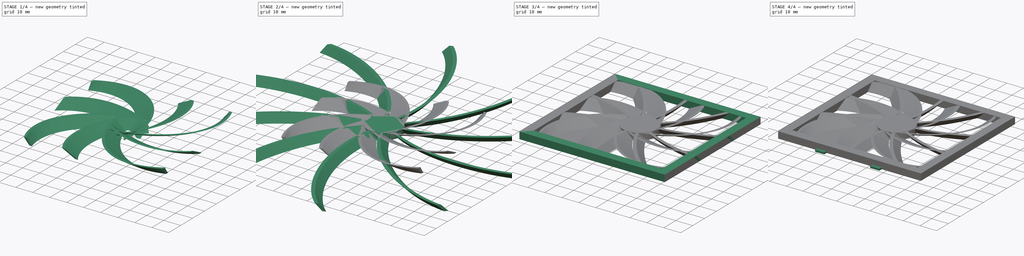
[diagram: build sequence overview — one tinted view per stage of 4, left to right]
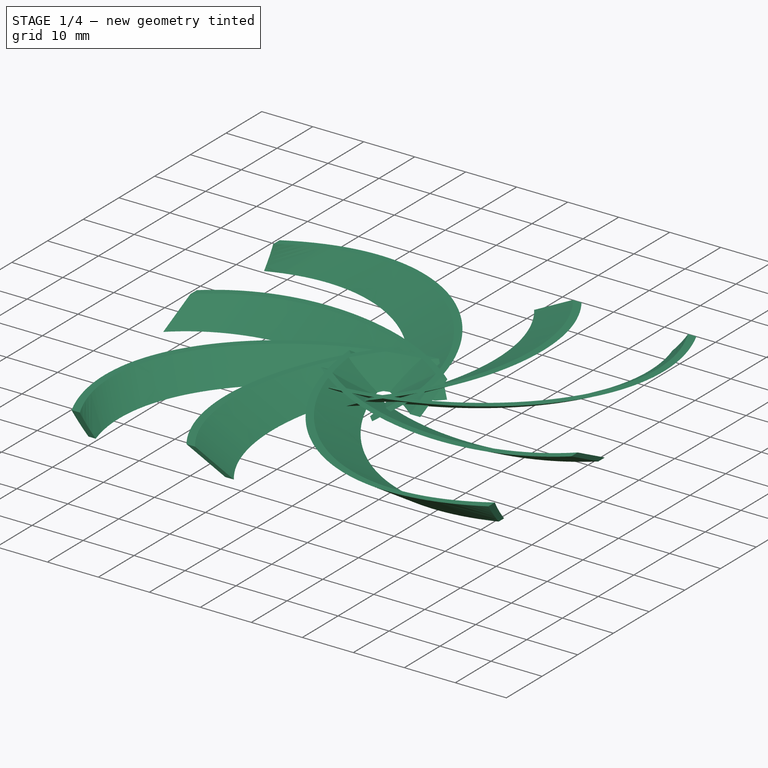
[diagram: stage 1 of 4 — iso view after this stage's code; geometry added in this stage tinted green]
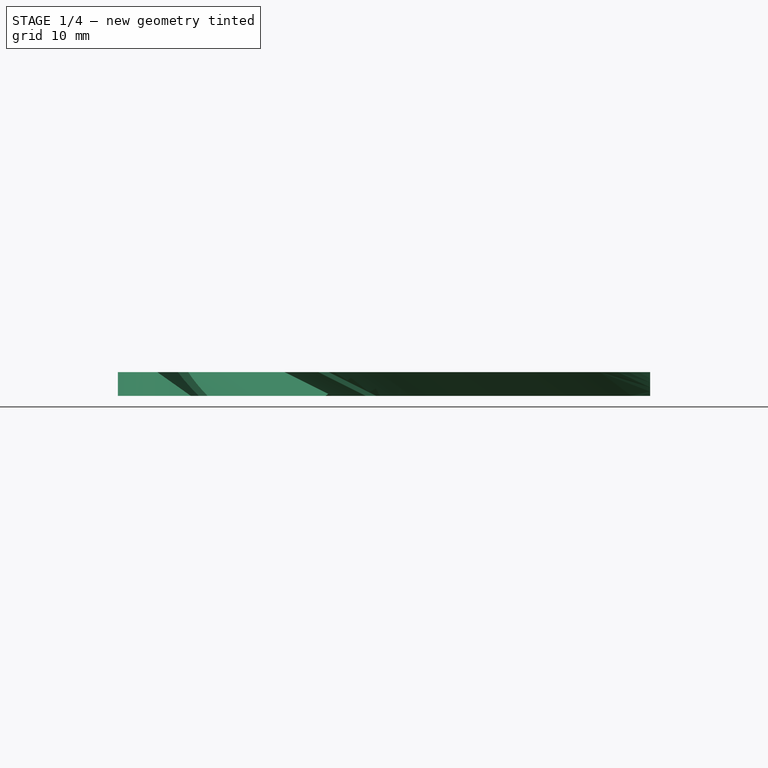
[diagram: stage 1 of 4 — front view after this stage's code; geometry added in this stage tinted green]
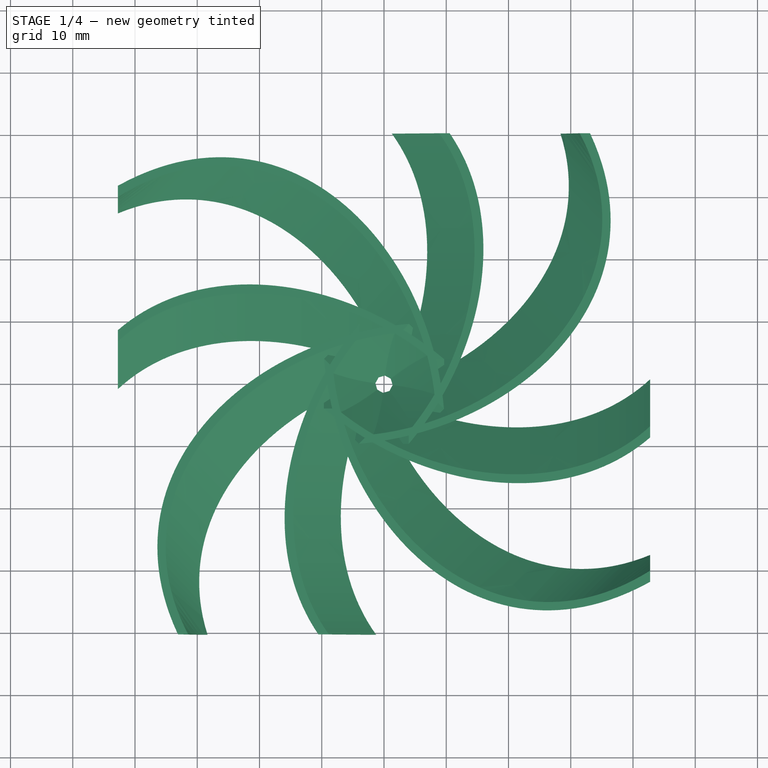
[diagram: stage 1 of 4 — top view after this stage's code; geometry added in this stage tinted green]
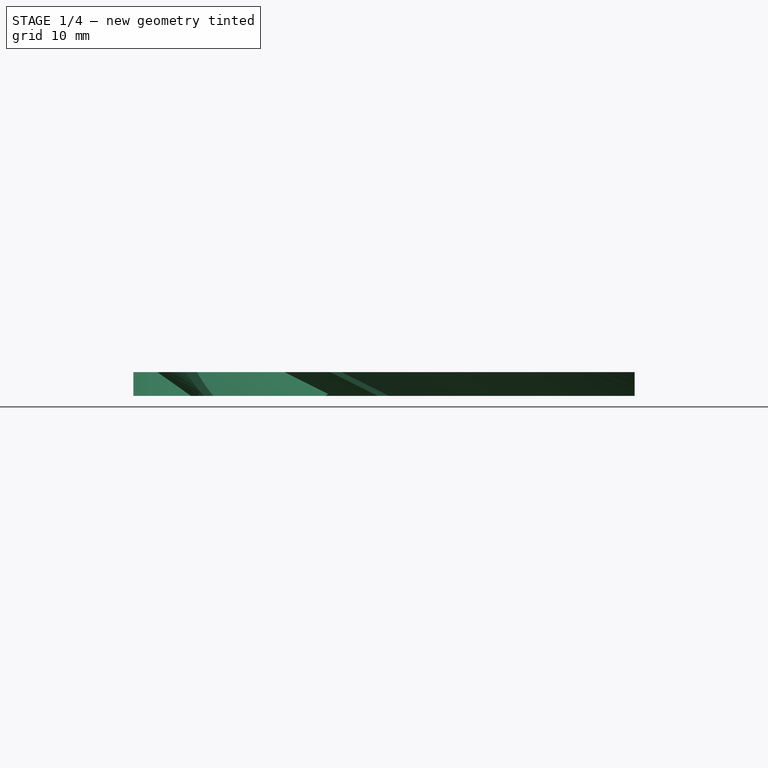
[diagram: stage 1 of 4 — right view after this stage's code; geometry added in this stage tinted green]
FCSTD DOCUMENT  (FreeCAD 0.17R13522 (Git))
Label: FengShanZhao-jwei-1.0
License: All rights reserved
LicenseURL: http://en.wikipedia.org/wiki/All_rights_reserved
objects: Sketcher::SketchObject×19, PartDesign::Body×4, PartDesign::Pad×4, Part::Extrusion×2, Part::FeaturePython×2, Part::Cylinder×2, PartDesign::Pocket×2, PartDesign::ShapeBinder×2, Part::Common×2, Part::Spiral×1
note: 46 computed .brp shape members not serialized (recipe doc carries the construction recipe); baked Part::Feature solids carry a one-line shape summary decoded from their .brp

FEATURE [Sketcher::SketchObject] Sketch008
  MapMode = 5
  Support = -> [XY_Plane003]
  sketch-geometry (4):
    g0: LineSegment StartX=-42.75 StartY=40.25 StartZ=0 EndX=42.75 EndY=40.25 EndZ=0
    g1: LineSegment StartX=42.75 StartY=40.25 StartZ=0 EndX=42.75 EndY=-40.25 EndZ=0
    g2: LineSegment StartX=42.75 StartY=-40.25 StartZ=0 EndX=-42.75 EndY=-40.25 EndZ=0
    g3: LineSegment StartX=-42.75 StartY=-40.25 StartZ=0 EndX=-42.75 EndY=40.25 EndZ=0
  constraints (12):
    c: Coincident(g0,g1)
    c: Coincident(g1,g2)
    c: Coincident(g2,g3)
    c: Coincident(g3,g0)
    c: Horizontal(g0)
    c: Horizontal(g2)
    c: Vertical(g1)
    c: Vertical(g3)
    c: DistanceX(g0,g0) = 85.5
    c: DistanceY(g1,g1) = 80.5
    c: DistanceX(g-2,g0) = 42.75
    c: DistanceY(g-1,g0) = 40.25
FEATURE [PartDesign::Pad] Pad001
  Length = 4
  Length2 = 100
  Profile = -> Sketch008
  Type = 0
FEATURE [Sketcher::SketchObject] Sketch018
  sketch-geometry (16):
    g0-g3: Circle [constr] x4 (B-spline internal-alignment scaffolding for g4; pole/knot coordinates omitted)
    g4: BSplineCurve PolesCount=4 KnotsCount=2 Degree=3 IsPeriodic=0
    g5: GeomPoint [constr] X=-54.5788 Y=-26.452 Z=0
    g6: GeomPoint [constr] X=9.65343 Y=-3.63273 Z=0
    g7-g10: Circle [constr] x4 (B-spline internal-alignment scaffolding for g11; pole/knot coordinates omitted)
    g11: BSplineCurve PolesCount=4 KnotsCount=2 Degree=3 IsPeriodic=0
    g12: GeomPoint [constr] X=-52.5788 Y=-26.452 Z=0
    g13: GeomPoint [constr] X=7.65343 Y=-3.63273 Z=0
    g14: LineSegment StartX=-54.5788 StartY=-26.452 StartZ=0 EndX=-52.5788 EndY=-26.452 EndZ=0
    g15: LineSegment StartX=7.65343 StartY=-3.63273 StartZ=0 EndX=9.65343 EndY=-3.63273 EndZ=0
  constraints (27):
    c: Radius(g0) = 4
    c: Equal(g0,g1)
    c: Equal(g0,g2)
    c: Equal(g0,g3)
    c: InternalAlignment(g0-g3 -> g4) x4
    c: InternalAlignment(g5,g4)
    c: InternalAlignment(g6,g4)
    c: Radius(g7) = 2
    c: Equal(g7,g8)
    c: Equal(g7,g9)
    c: Equal(g7,g10)
    c: InternalAlignment(g7-g10 -> g11) x4
    c: InternalAlignment(g12,g11)
    c: InternalAlignment(g13,g11)
    c: Coincident(g14,g0)
    c: Coincident(g14,g7)
    c: Horizontal(g14)
    c: Coincident(g15,g3)
    c: Horizontal(g15)
    c: Coincident(g10,g15)
    c: DistanceX(g14,g14) = 2
    c: DistanceX(g15,g15) = 2
    c: Vertical(g8,g1)
    c: Vertical(g9,g2)
    c: Distance(g1,g8) = 2
    c: Distance(g9,g2) = 2
    c: Horizontal(g1,g9)
FEATURE [Part::Extrusion] Extrude001
  Base = -> Sketch018
  Dir = (0,20,10)
  DirMode = 0
  FaceMakerClass = Part::FaceMakerBullseye
  LengthFwd = 8.5
  LengthRev = 0
  Solid = true
  Symmetric = false
FEATURE [Part::FeaturePython] Array001  # Draft array (typed FeaturePython)
  Angle = 360
  ArrayType = 1
  Axis = (0,0,1)
  Base = -> Extrude001
  Center = (0,0,0)
  Fuse = false
  IntervalAxis = (0,0,0)
  IntervalX = (1,0,0)
  IntervalY = (0,1,0)
  IntervalZ = (0,0,0)
  NumberPolar = 8
  NumberX = 2
  NumberY = 2
  NumberZ = 1
FEATURE [Part::Common] Common001
  Base = -> Body003
  Tool = -> Array001
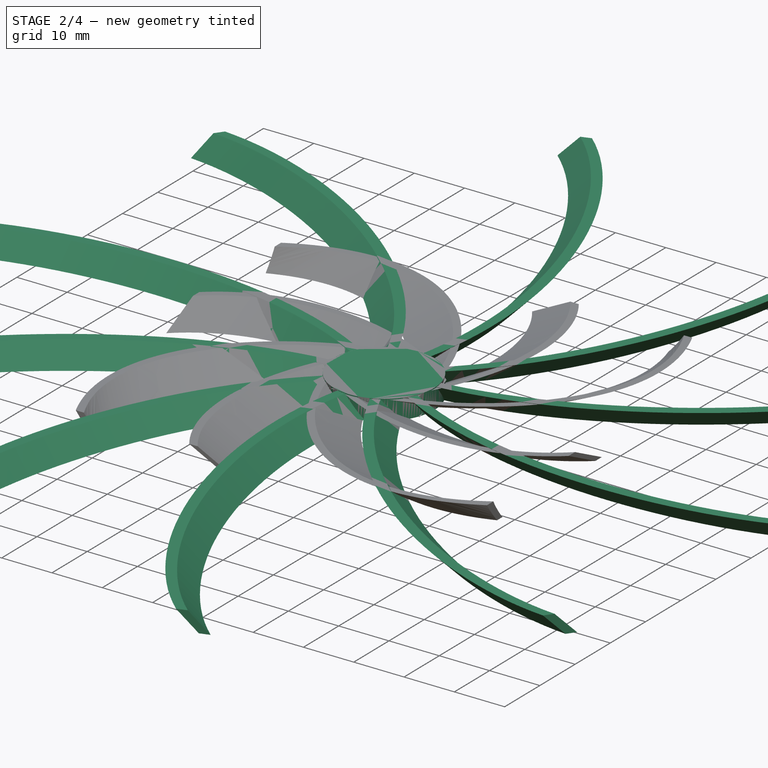
[diagram: stage 2 of 4 — iso view after this stage's code; geometry added in this stage tinted green]
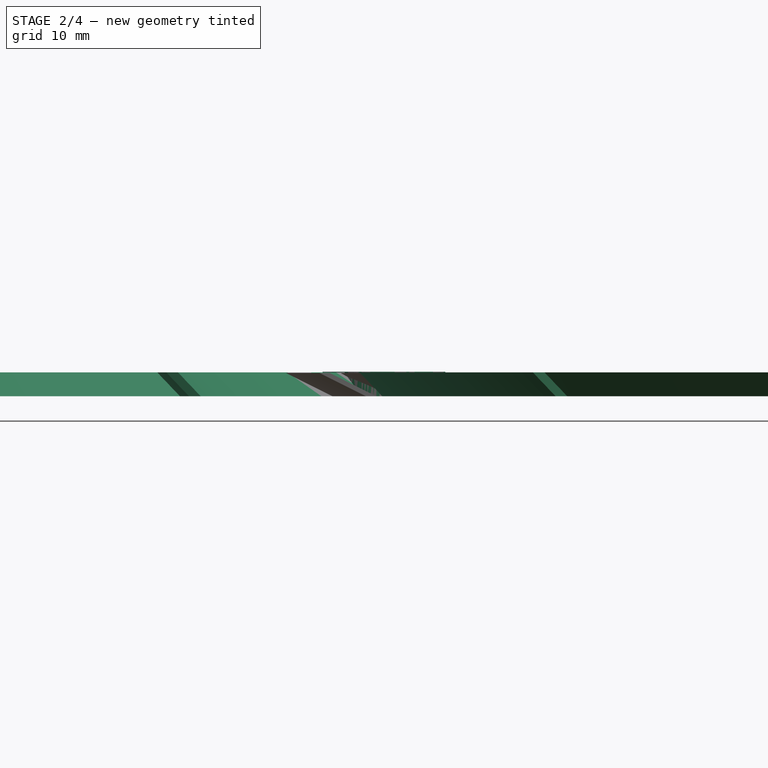
[diagram: stage 2 of 4 — front view after this stage's code; geometry added in this stage tinted green]
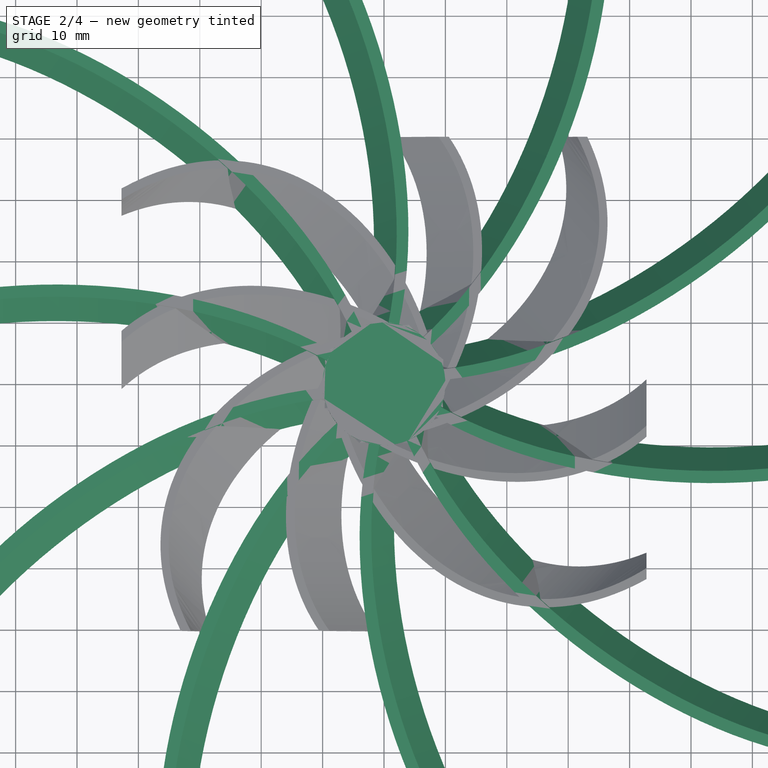
[diagram: stage 2 of 4 — top view after this stage's code; geometry added in this stage tinted green]
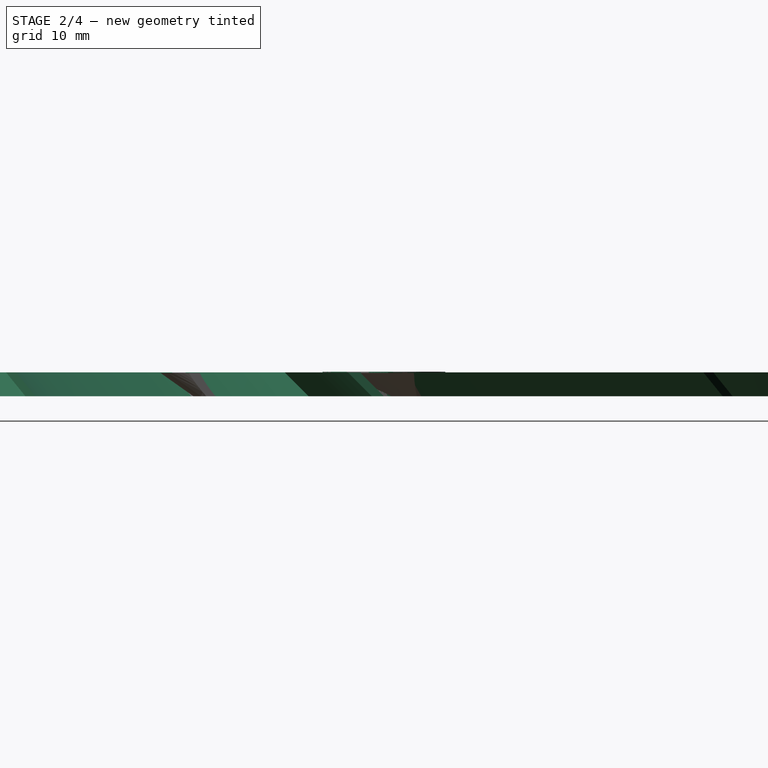
[diagram: stage 2 of 4 — right view after this stage's code; geometry added in this stage tinted green]
FEATURE [Part::Spiral] Spiral  label="螺旋"
  AttacherType = Attacher::AttachEngine3D
  Growth = 100
  Radius = 2
  Rotations = 0.15
FEATURE [Sketcher::SketchObject] Sketch
  MapMode = 5
  Placement = pos=(0,0,0) rot=(0.57735,0.57735,0.57735;2.0944rad)
  Support = -> [YZ_Plane]
  sketch-geometry (4):
    g0: LineSegment StartX=-3.28878 StartY=1.5 StartZ=0 EndX=-2.78878 EndY=1.5 EndZ=0
    g1: LineSegment StartX=-2.78878 StartY=1.5 StartZ=0 EndX=-2.78878 EndY=0 EndZ=0
    g2: LineSegment StartX=-2.78878 StartY=0 StartZ=0 EndX=-3.28878 EndY=0 EndZ=0
    g3: LineSegment StartX=-3.28878 StartY=0 StartZ=0 EndX=-3.28878 EndY=1.5 EndZ=0
  constraints (11):
    c: Coincident(g0,g1)
    c: Coincident(g1,g2)
    c: Coincident(g2,g3)
    c: Coincident(g3,g0)
    c: Horizontal(g0)
    c: Horizontal(g2)
    c: Vertical(g1)
    c: Vertical(g3)
    c: PointOnObject(g2,g-1)
    c: DistanceX(g2,g2) = 0.5
    c: DistanceY(g3,g3) = 1.5
FEATURE [Sketcher::SketchObject] Sketch001
  sketch-geometry (16):
    g0-g3: Circle [constr] x4 (B-spline internal-alignment scaffolding for g4; pole/knot coordinates omitted)
    g4: BSplineCurve PolesCount=4 KnotsCount=2 Degree=3 IsPeriodic=0
    g5: GeomPoint [constr] X=-96.6016 Y=0 Z=0
    g6: GeomPoint [constr] X=3.39841 Y=-9.40483 Z=0
    g7-g10: Circle [constr] x4 (B-spline internal-alignment scaffolding for g11; pole/knot coordinates omitted)
    g11: BSplineCurve PolesCount=4 KnotsCount=2 Degree=3 IsPeriodic=0
    g12: GeomPoint [constr] X=-96.6016 Y=2 Z=0
    g13: GeomPoint [constr] X=3.39841 Y=-7.40483 Z=0
    g14: LineSegment StartX=-96.6016 StartY=2 StartZ=0 EndX=-96.6016 EndY=0 EndZ=0
    g15: LineSegment StartX=3.39841 StartY=-7.40483 StartZ=0 EndX=3.39841 EndY=-9.40483 EndZ=0
  constraints (32):
    c: Equal(g0,g1)
    c: Equal(g0,g2)
    c: InternalAlignment(g0-g3 -> g4) x4
    c: InternalAlignment(g5,g4)
    c: InternalAlignment(g6,g4)
    c: PointOnObject(g0,g-1)
    c: DistanceY(g-1,g1) = 15
    c: DistanceY(g-1,g2) = 15
    c: Radius(g7) = 6
    c: Equal(g7,g8)
    c: Equal(g7,g9)
    c: Equal(g7,g10)
    c: InternalAlignment(g7-g10 -> g11) x4
    c: InternalAlignment(g12,g11)
    c: InternalAlignment(g13,g11)
    c: Vertical(g7,g0)
    c: Distance(g7,g0) = 2
    c: Vertical(g8,g1)
    c: Vertical(g9,g2)
    c: Distance(g8,g1) = 2
    c: Distance(g9,g2) = 2
    c: Vertical(g14)
    c: Coincident(g14,g7)
    c: Coincident(g14,g0)
    c: Coincident(g10,g15)
    c: Coincident(g15,g3)
    c: Distance(g10,g3) = 2
    c: Distance(g1,g2) = 50
    c: Vertical(g15)
    c: DistanceX(g0,g3) = 100
    c: Distance(g-1,g3) = 10
    c: DistanceX(g9,g10) = 25
FEATURE [Sketcher::SketchObject] Sketch002
  ExternalGeometry = -> [Sketch001]
  Placement = pos=(50,0,0) rot=(0.57735,0.57735,0.57735;2.0944rad)
  sketch-geometry (15):
    g0-g3: Circle [constr] x4 (B-spline internal-alignment scaffolding for g4; pole/knot coordinates omitted)
    g4: BSplineCurve PolesCount=4 KnotsCount=2 Degree=3 IsPeriodic=0
    g5: GeomPoint [constr] X=0 Y=0 Z=0
    g6: GeomPoint [constr] X=-0.5 Y=-2 Z=0
    g7-g10: Circle [constr] x4 (B-spline internal-alignment scaffolding for g11; pole/knot coordinates omitted)
    g11: BSplineCurve PolesCount=4 KnotsCount=2 Degree=3 IsPeriodic=0
    g12: GeomPoint [constr] X=-7.40483 Y=0 Z=0
    g13: GeomPoint [constr] X=0.5 Y=-2 Z=0
    g14: LineSegment StartX=-0.5 StartY=-2 StartZ=0 EndX=0.5 EndY=-2 EndZ=0
  constraints (28):
    c: Radius(g0) = 0.2
    c: Equal(g0,g1)
    c: Equal(g0,g2)
    c: Equal(g0,g3)
    c: InternalAlignment(g0-g3 -> g4) x4
    c: InternalAlignment(g5,g4)
    c: InternalAlignment(g6,g4)
    c: Radius(g7) = 0.3
    c: Equal(g7,g8)
    c: Equal(g7,g9)
    c: Equal(g7,g10)
    c: InternalAlignment(g7-g10 -> g11) x4
    c: InternalAlignment(g12,g11)
    c: InternalAlignment(g13,g11)
    c: Coincident(g0,g-1)
    c: DistanceX(g-2,g2) = 0.001
    c: Coincident(g7,g-3)
    c: DistanceY(g3,g-1) = 2
    c: Horizontal(g10,g3)
    c: Horizontal(g1,g8)
    c: Horizontal(g2,g9)
    c: Distance(g8,g1) = 1
    c: Distance(g9,g2) = 1
    c: Distance(g10,g3) = 1
    c: Horizontal(g14)
    c: Coincident(g14,g3)
    c: Coincident(g14,g10)
    c: DistanceX(g-2,g3) = -0.5
FEATURE [Sketcher::SketchObject] Sketch003
  Placement = pos=(0,-0.5,-2) rot=(0,0,1;0rad)
  sketch-geometry (16):
    g0-g3: Circle [constr] x4 (B-spline internal-alignment scaffolding for g4; pole/knot coordinates omitted)
    g4: BSplineCurve PolesCount=4 KnotsCount=2 Degree=3 IsPeriodic=0
    g5: GeomPoint [constr] X=-50 Y=0 Z=0
    g6: GeomPoint [constr] X=50 Y=0 Z=0
    g7-g10: Circle [constr] x4 (B-spline internal-alignment scaffolding for g11; pole/knot coordinates omitted)
    g11: BSplineCurve PolesCount=4 KnotsCount=2 Degree=3 IsPeriodic=0
    g12: GeomPoint [constr] X=-50 Y=1 Z=0
    g13: GeomPoint [constr] X=50 Y=1 Z=0
    g14: LineSegment StartX=-50 StartY=1 StartZ=0 EndX=-50 EndY=0 EndZ=0
    g15: LineSegment StartX=50 StartY=1 StartZ=0 EndX=50 EndY=0 EndZ=0
  constraints (36):
    c: Radius(g0) = 4
    c: Equal(g0,g1)
    c: Equal(g0,g2)
    c: Equal(g0,g3)
    c: InternalAlignment(g0-g3 -> g4) x4
    c: InternalAlignment(g5,g4)
    c: InternalAlignment(g6,g4)
    c: PointOnObject(g0,g-1)
    c: PointOnObject(g3,g-1)
    c: Distance(g0,g3) = 100
    c: Distance(g-1,g3) = 50
    c: DistanceX(g-2,g2) = 30
    c: DistanceX(g-2,g1) = -30
    c: DistanceY(g-1,g1) = 15
    c: DistanceY(g-1,g2) = 15
    c: Radius(g7) = 6
    c: Equal(g7,g8)
    c: Equal(g7,g9)
    c: Equal(g7,g10)
    c: InternalAlignment(g7-g10 -> g11) x4
    c: InternalAlignment(g12,g11)
    c: InternalAlignment(g13,g11)
    c: Distance(g10,g7) = 100
    c: Vertical(g7,g0)
    c: Vertical(g10,g3)
    c: Distance(g7,g0) = 1
    c: Vertical(g8,g1)
    c: Vertical(g9,g2)
    c: Distance(g8,g1) = 1
    c: Distance(g9,g2) = 1
    c: Vertical(g14)
    c: Coincident(g14,g7)
    c: Coincident(g14,g0)
    c: Coincident(g10,g15)
    c: Coincident(g15,g3)
    c: Distance(g10,g3) = 1
FEATURE [Sketcher::SketchObject] Sketch004
  ExternalGeometry = -> [Sketch001]
  Placement = pos=(-50,0,0) rot=(0.57735,0.57735,0.57735;2.0944rad)
  sketch-geometry (15):
    g0-g3: Circle [constr] x4 (B-spline internal-alignment scaffolding for g4; pole/knot coordinates omitted)
    g4: BSplineCurve PolesCount=4 KnotsCount=2 Degree=3 IsPeriodic=0
    g5: GeomPoint [constr] X=0 Y=0 Z=0
    g6: GeomPoint [constr] X=-0.5 Y=-2 Z=0
    g7-g10: Circle [constr] x4 (B-spline internal-alignment scaffolding for g11; pole/knot coordinates omitted)
    g11: BSplineCurve PolesCount=4 KnotsCount=2 Degree=3 IsPeriodic=0
    g12: GeomPoint [constr] X=-7.40483 Y=0 Z=0
    g13: GeomPoint [constr] X=0.5 Y=-2 Z=0
    g14: LineSegment StartX=-0.5 StartY=-2 StartZ=0 EndX=0.5 EndY=-2 EndZ=0
  constraints (28):
    c: Radius(g0) = 0.2
    c: Equal(g0,g1)
    c: Equal(g0,g2)
    c: Equal(g0,g3)
    c: InternalAlignment(g0-g3 -> g4) x4
    c: InternalAlignment(g5,g4)
    c: InternalAlignment(g6,g4)
    c: Radius(g7) = 0.3
    c: Equal(g7,g8)
    c: Equal(g7,g9)
    c: Equal(g7,g10)
    c: InternalAlignment(g7-g10 -> g11) x4
    c: InternalAlignment(g12,g11)
    c: InternalAlignment(g13,g11)
    c: Coincident(g0,g-1)
    c: DistanceX(g-2,g2) = 0.001
    c: Coincident(g7,g-3)
    c: DistanceY(g3,g-1) = 2
    c: Horizontal(g10,g3)
    c: Horizontal(g1,g8)
    c: Horizontal(g2,g9)
    c: Distance(g8,g1) = 1
    c: Distance(g9,g2) = 1
    c: Distance(g10,g3) = 1
    c: Horizontal(g14)
    c: Coincident(g14,g3)
    c: Coincident(g14,g10)
    c: DistanceX(g-2,g3) = -0.5
FEATURE [Sketcher::SketchObject] Sketch005
  MapMode = 5
  Placement = pos=(0,0,0) rot=(0.57735,0.57735,0.57735;2.0944rad)
  Support = -> [YZ_Plane001]
  sketch-geometry (4):
    g0: LineSegment StartX=-1.68596 StartY=4 StartZ=0 EndX=-0.685956 EndY=4 EndZ=0
    g1: LineSegment StartX=-0.685956 StartY=4 StartZ=0 EndX=-0.685956 EndY=0 EndZ=0
    g2: LineSegment StartX=-0.685956 StartY=0 StartZ=0 EndX=-1.68596 EndY=0 EndZ=0
    g3: LineSegment StartX=-1.68596 StartY=0 StartZ=0 EndX=-1.68596 EndY=4 EndZ=0
  constraints (11):
    c: Coincident(g0,g1)
    c: Coincident(g1,g2)
    c: Coincident(g2,g3)
    c: Coincident(g3,g0)
    c: Horizontal(g0)
    c: Horizontal(g2)
    c: Vertical(g1)
    c: Vertical(g3)
    c: DistanceY(g3,g3) = 4
    c: DistanceX(g2,g2) = 1
    c: PointOnObject(g1,g-1)
FEATURE [PartDesign::Body] Body001
  Group = -> [Sketch005]
  Origin = -> Origin001
FEATURE [Part::Extrusion] Extrude
  Base = -> Sketch001
  Dir = (0,10,10)
  DirMode = 0
  FaceMakerClass = Part::FaceMakerBullseye
  LengthFwd = 5.5
  LengthRev = 0
  Solid = true
  Symmetric = false
FEATURE [Part::FeaturePython] Array  # Draft array (typed FeaturePython)
  Angle = 360
  ArrayType = 1
  Axis = (0,0,1)
  Base = -> Extrude
  Center = (0,0,0)
  Fuse = false
  IntervalAxis = (0,0,0)
  IntervalX = (1,0,0)
  IntervalY = (0,1,0)
  IntervalZ = (0,0,0)
  NumberPolar = 10
  NumberX = 0
  NumberY = 0
  NumberZ = 0
FEATURE [Part::Cylinder] Cylinder001  label="圆柱体001"
  Angle = 360
  AttacherType = Attacher::AttachEngine3D
  Height = 4
  Radius = 10
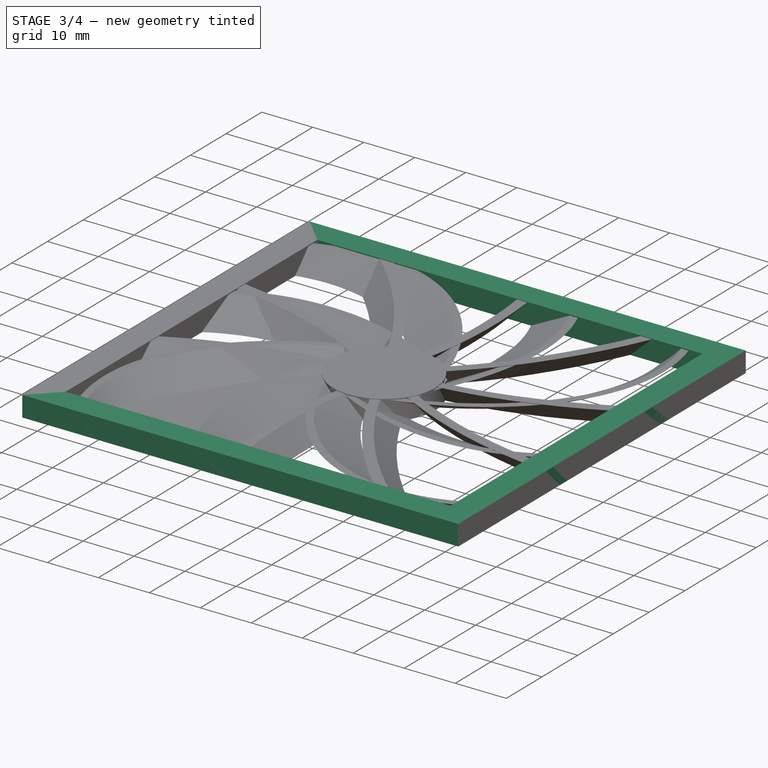
[diagram: stage 3 of 4 — iso view after this stage's code; geometry added in this stage tinted green]
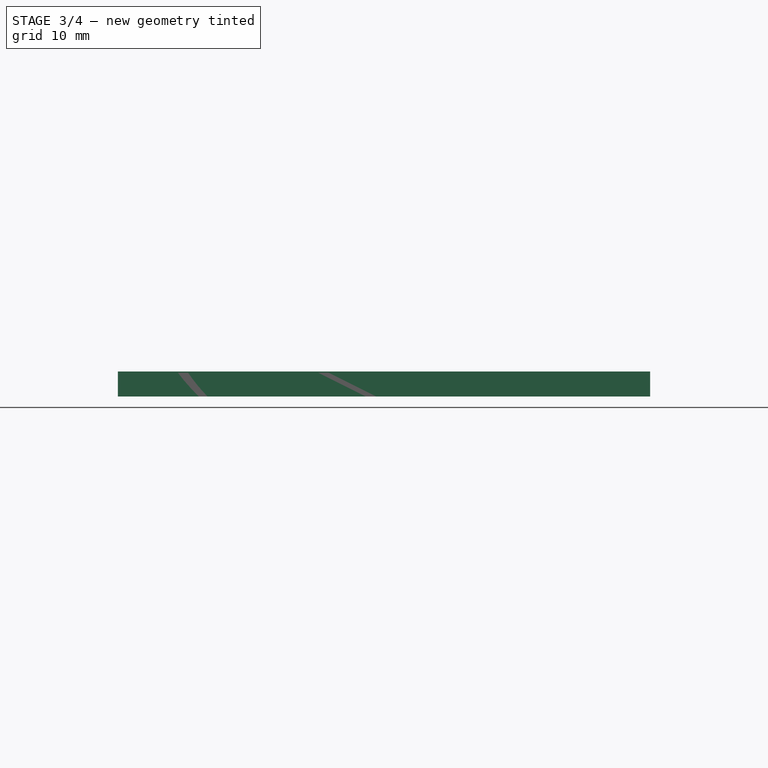
[diagram: stage 3 of 4 — front view after this stage's code; geometry added in this stage tinted green]
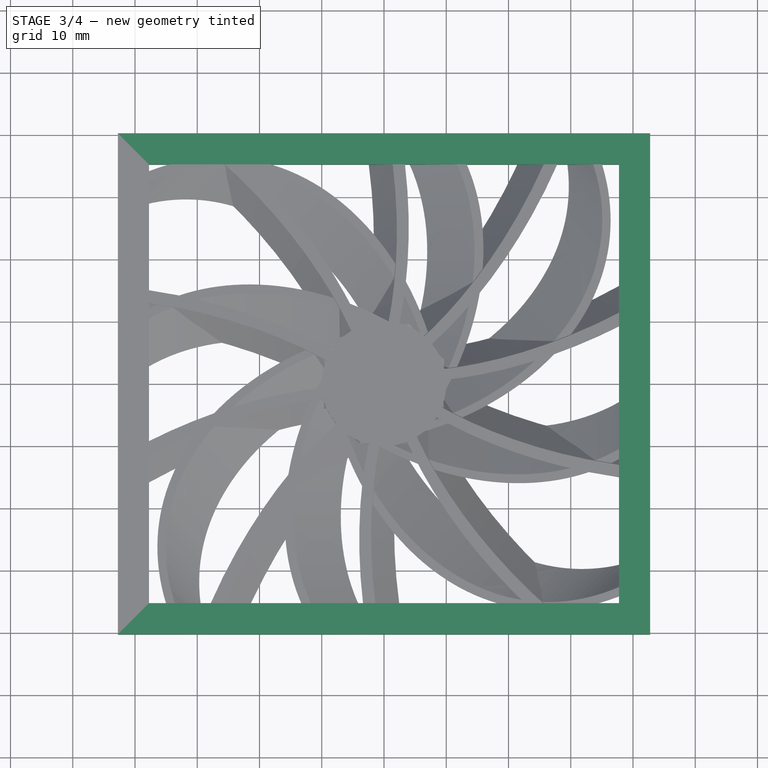
[diagram: stage 3 of 4 — top view after this stage's code; geometry added in this stage tinted green]
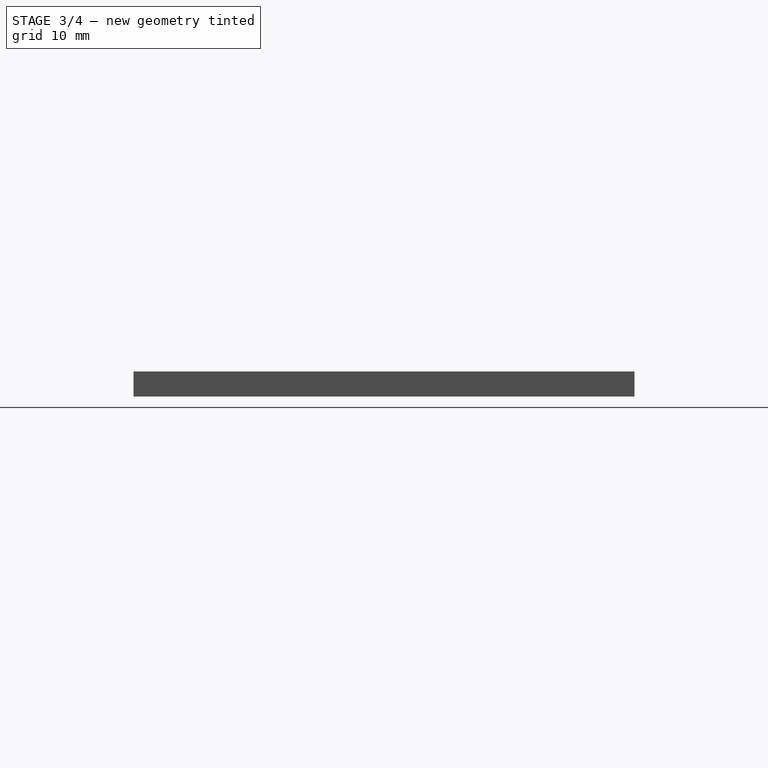
[diagram: stage 3 of 4 — right view after this stage's code; geometry added in this stage tinted green]
FEATURE [Sketcher::SketchObject] Sketch006
  MapMode = 5
  Support = -> [XY_Plane002]
  sketch-geometry (4):
    g0: LineSegment StartX=-42.75 StartY=40.25 StartZ=0 EndX=42.75 EndY=40.25 EndZ=0
    g1: LineSegment StartX=42.75 StartY=40.25 StartZ=0 EndX=42.75 EndY=-40.25 EndZ=0
    g2: LineSegment StartX=42.75 StartY=-40.25 StartZ=0 EndX=-42.75 EndY=-40.25 EndZ=0
    g3: LineSegment StartX=-42.75 StartY=-40.25 StartZ=0 EndX=-42.75 EndY=40.25 EndZ=0
  constraints (12):
    c: Coincident(g0,g1)
    c: Coincident(g1,g2)
    c: Coincident(g2,g3)
    c: Coincident(g3,g0)
    c: Horizontal(g0)
    c: Horizontal(g2)
    c: Vertical(g1)
    c: Vertical(g3)
    c: DistanceY(g1,g1) = 80.5
    c: DistanceX(g2,g2) = 85.5
    c: DistanceY(g-1,g0) = 40.25
    c: DistanceX(g-2,g2) = -42.75
FEATURE [PartDesign::Pad] Pad
  Length = 4
  Length2 = 100
  Profile = -> Sketch006
  Type = 0
FEATURE [Sketcher::SketchObject] Sketch007
  ExternalGeometry = -> [Pad]
  MapMode = 5
  Placement = pos=(0,0,4) rot=(0,0,1;0rad)
  Support = -> [Pad]
  sketch-geometry (4):
    g0: LineSegment StartX=-37.75 StartY=35.25 StartZ=0 EndX=37.75 EndY=35.25 EndZ=0
    g1: LineSegment StartX=37.75 StartY=35.25 StartZ=0 EndX=37.75 EndY=-35.25 EndZ=0
    g2: LineSegment StartX=37.75 StartY=-35.25 StartZ=0 EndX=-37.75 EndY=-35.25 EndZ=0
    g3: LineSegment StartX=-37.75 StartY=-35.25 StartZ=0 EndX=-37.75 EndY=35.25 EndZ=0
  constraints (12):
    c: Coincident(g0,g1)
    c: Coincident(g1,g2)
    c: Coincident(g2,g3)
    c: Coincident(g3,g0)
    c: Horizontal(g0)
    c: Horizontal(g2)
    c: Vertical(g1)
    c: Vertical(g3)
    c: DistanceY(g1,g1) = 70.5
    c: DistanceX(g2,g2) = 75.5
    c: DistanceY(g-1,g2) = -35.25
    c: DistanceX(g-2,g2) = -37.75
FEATURE [PartDesign::Pocket] Pocket
  BaseFeature = -> Pad
  Length = 4
  Length2 = 100
  Profile = -> Sketch007
  Type = 1
FEATURE [PartDesign::Body] Body002
  Group = -> [Sketch006,Pad,Sketch007,Pocket,Sketch013,Sketch014,Pad002,Sketch015,Sketch016,Pad003,Sketch017,Pocket001]
  Origin = -> Origin002
  Tip = -> Pocket001
FEATURE [Part::Common] Common
  Base = -> Body003
  Tool = -> Array
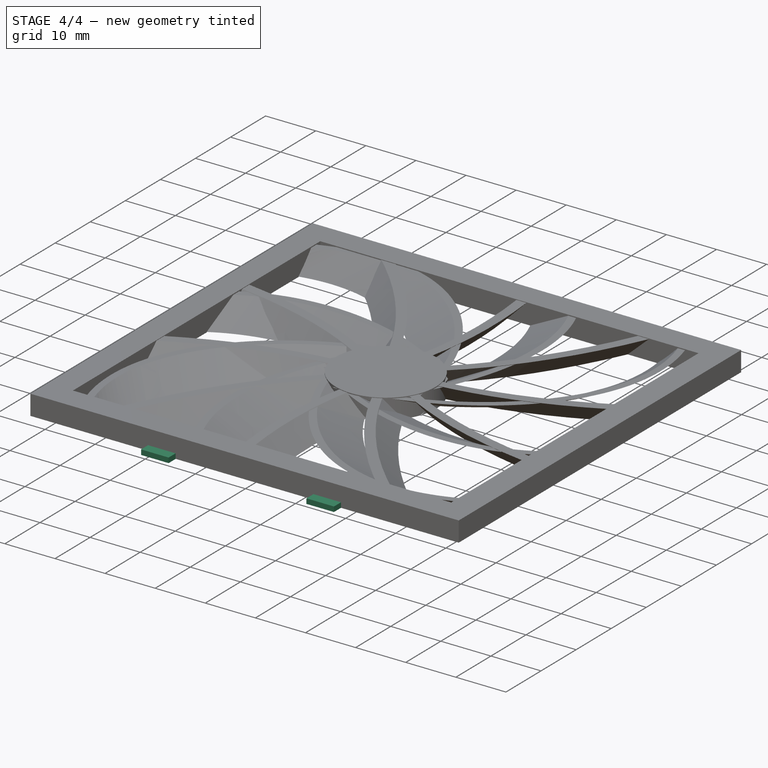
[diagram: stage 4 of 4 — iso view after this stage's code; geometry added in this stage tinted green]
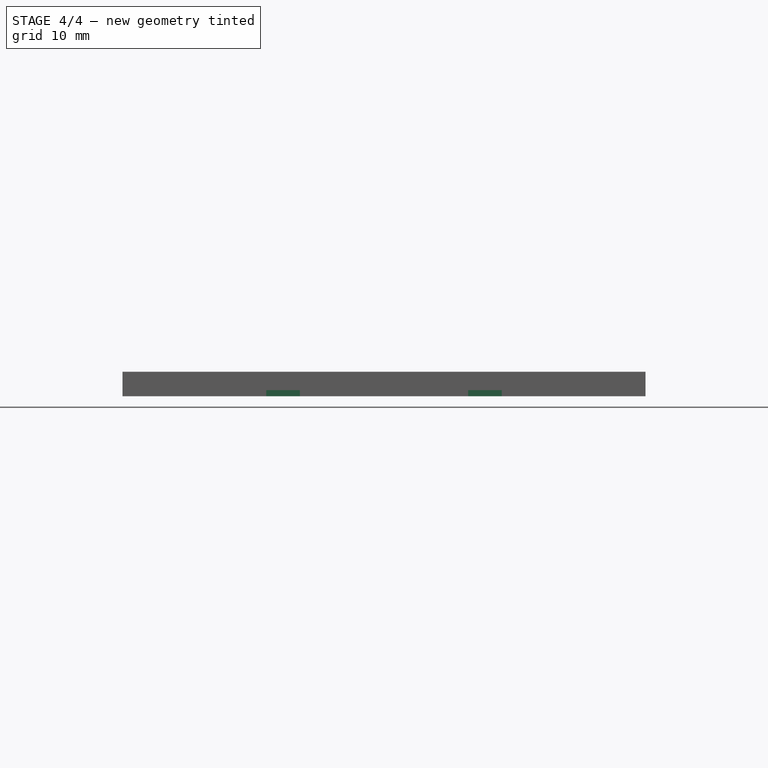
[diagram: stage 4 of 4 — front view after this stage's code; geometry added in this stage tinted green]
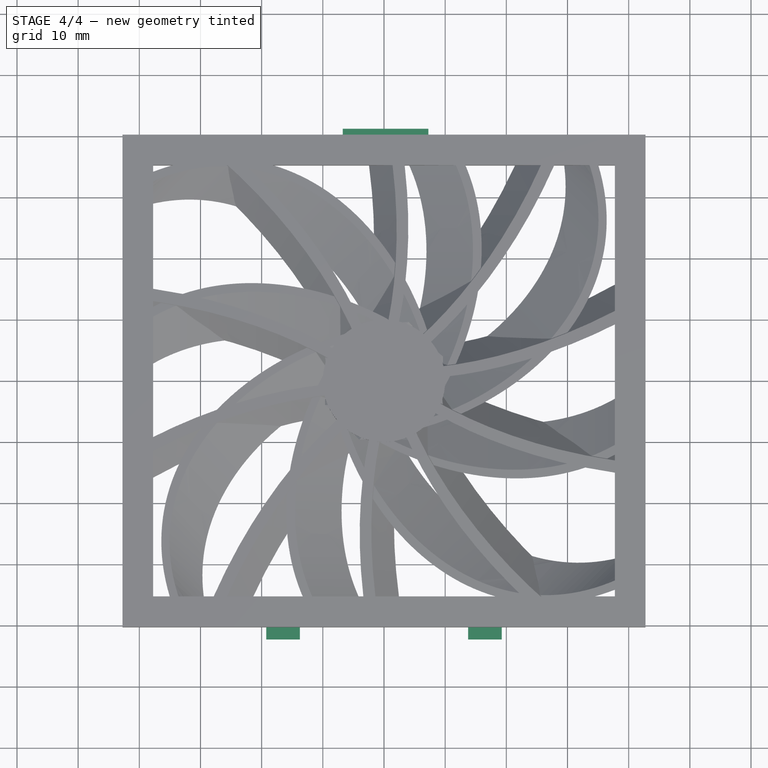
[diagram: stage 4 of 4 — top view after this stage's code; geometry added in this stage tinted green]
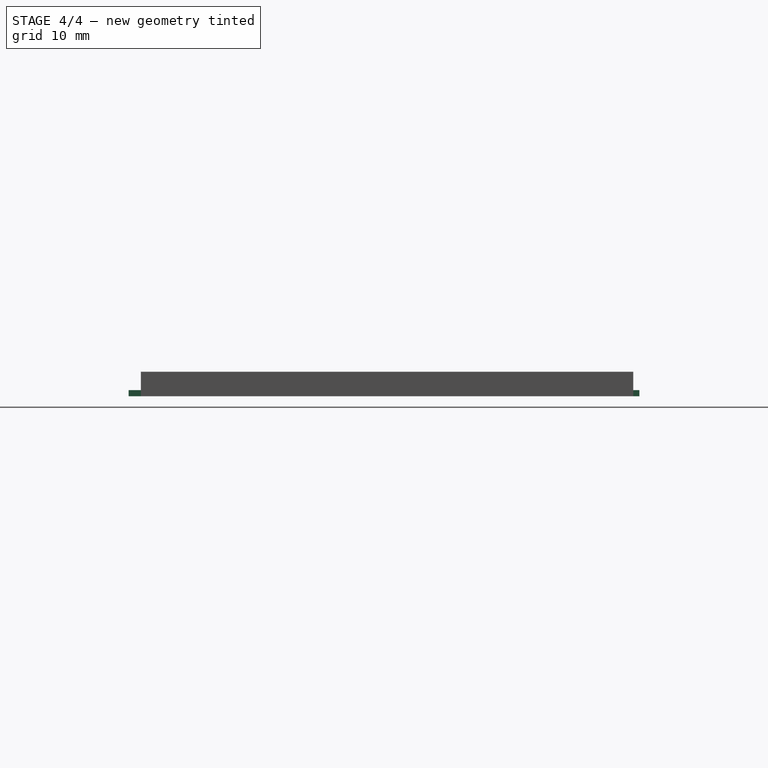
[diagram: stage 4 of 4 — right view after this stage's code; geometry added in this stage tinted green]
FEATURE [Part::Cylinder] Cylinder  label="圆柱体"
  Angle = 360
  AttacherType = Attacher::AttachEngine3D
  Height = 4
  Radius = 10
FEATURE [PartDesign::Body] Body003
  Group = -> [Sketch008,Pad001]
  Origin = -> Origin003
  Tip = -> Pad001
FEATURE [Sketcher::SketchObject] Sketch009
  MapMode = 5
  Support = -> [XY_Plane]
FEATURE [PartDesign::ShapeBinder] CopyCommon
FEATURE [Sketcher::SketchObject] Sketch010
  MapMode = 5
  Placement = pos=(0,-40.25,0) rot=(1,0,0;1.5708rad)
  Support = -> [CopyCommon]
FEATURE [PartDesign::ShapeBinder] ReferenceCommon
FEATURE [Sketcher::SketchObject] Sketch011
  MapMode = 5
  Placement = pos=(0,0,0) rot=(1,0,0;3.14159rad)
  Support = -> [ReferenceCommon]
FEATURE [Sketcher::SketchObject] Sketch012
  MapMode = 5
  Placement = pos=(0,0,0) rot=(1,0,0;3.14159rad)
FEATURE [PartDesign::Body] Body
  Group = -> [Sketch,Sketch009,CopyCommon,Sketch010,ReferenceCommon,Sketch011,Sketch012]
  Origin = -> Origin
FEATURE [Sketcher::SketchObject] Sketch013
  MapMode = 5
  Placement = pos=(0,-40.25,0) rot=(1,0,0;1.5708rad)
  Support = -> [Pocket]
FEATURE [Sketcher::SketchObject] Sketch014
  ExternalGeometry = -> [Pocket]
  MapMode = 5
  Placement = pos=(0,-40.25,0) rot=(1,0,0;1.5708rad)
  Support = -> [Pocket]
  sketch-geometry (8):
    g0: LineSegment StartX=-19.25 StartY=1 StartZ=0 EndX=-13.75 EndY=1 EndZ=0
    g1: LineSegment StartX=-13.75 StartY=1 StartZ=0 EndX=-13.75 EndY=0 EndZ=0
    g2: LineSegment StartX=-13.75 StartY=0 StartZ=0 EndX=-19.25 EndY=0 EndZ=0
    g3: LineSegment StartX=-19.25 StartY=0 StartZ=0 EndX=-19.25 EndY=1 EndZ=0
    g4: LineSegment StartX=13.75 StartY=1 StartZ=0 EndX=19.25 EndY=1 EndZ=0
    g5: LineSegment StartX=19.25 StartY=1 StartZ=0 EndX=19.25 EndY=0 EndZ=0
    g6: LineSegment StartX=19.25 StartY=0 StartZ=0 EndX=13.75 EndY=0 EndZ=0
    g7: LineSegment StartX=13.75 StartY=0 StartZ=0 EndX=13.75 EndY=1 EndZ=0
  constraints (24):
    c: Coincident(g0,g1)
    c: Coincident(g1,g2)
    c: Coincident(g2,g3)
    c: Coincident(g3,g0)
    c: Horizontal(g0)
    c: Horizontal(g2)
    c: Vertical(g1)
    c: Vertical(g3)
    c: Coincident(g4,g5)
    c: Coincident(g5,g6)
    c: Coincident(g6,g7)
    c: Coincident(g7,g4)
    c: Horizontal(g4)
    c: Horizontal(g6)
    c: Vertical(g5)
    c: Vertical(g7)
    c: DistanceY(g3,g3) = 1
    c: DistanceX(g0,g0) = 5.5
    c: Distance(g2,g-3) = 23.5
    c: PointOnObject(g2,g-1)
    c: DistanceY(g7,g7) = 1
    c: DistanceX(g4,g4) = 5.5
    c: Distance(g5,g-4) = 23.5
    c: PointOnObject(g6,g-1)
FEATURE [PartDesign::Pad] Pad002
  BaseFeature = -> Pocket
  Length = 2
  Length2 = 100
  Profile = -> Sketch014
  Type = 0
FEATURE [Sketcher::SketchObject] Sketch015
  MapMode = 5
  Placement = pos=(0,40.25,0) rot=(0,0.707107,0.707107;3.14159rad)
  Support = -> [Pad002]
FEATURE [Sketcher::SketchObject] Sketch016
  ExternalGeometry = -> [Pad002]
  MapMode = 5
  Placement = pos=(0,40.25,0) rot=(0,0.707107,0.707107;3.14159rad)
  Support = -> [Pad002]
  sketch-geometry (4):
    g0: LineSegment StartX=-7.25 StartY=1 StartZ=0 EndX=6.75 EndY=1 EndZ=0
    g1: LineSegment StartX=6.75 StartY=1 StartZ=0 EndX=6.75 EndY=0 EndZ=0
    g2: LineSegment StartX=6.75 StartY=0 StartZ=0 EndX=-7.25 EndY=0 EndZ=0
    g3: LineSegment StartX=-7.25 StartY=0 StartZ=0 EndX=-7.25 EndY=1 EndZ=0
  constraints (12):
    c: Coincident(g0,g1)
    c: Coincident(g1,g2)
    c: Coincident(g2,g3)
    c: Coincident(g3,g0)
    c: Horizontal(g0)
    c: Horizontal(g2)
    c: Vertical(g1)
    c: Vertical(g3)
    c: DistanceY(g3,g3) = 1
    c: DistanceX(g0,g0) = 14
    c: PointOnObject(g2,g-1)
    c: Distance(g0,g-3) = 35.5
FEATURE [PartDesign::Pad] Pad003
  BaseFeature = -> Pad002
  Length = 1
  Length2 = 100
  Profile = -> Sketch016
  Type = 0
FEATURE [Sketcher::SketchObject] Sketch017
  ExternalGeometry = -> [Pad003]
  MapMode = 5
  Placement = pos=(0,40.25,0) rot=(0,0.707107,0.707107;3.14159rad)
  Support = -> [Pad003]
  sketch-geometry (4):
    g0: ArcOfCircle CenterX=-7.5 CenterY=3 CenterZ=0 NormalX=0 NormalY=0 NormalZ=1 AngleXU=0 Radius=0.5 StartAngle=1.5708 EndAngle=4.71239
    g1: ArcOfCircle CenterX=7.5 CenterY=3 CenterZ=0 NormalX=0 NormalY=0 NormalZ=1 AngleXU=0 Radius=0.5 StartAngle=4.71239 EndAngle=7.85398
    g2: LineSegment StartX=-7.5 StartY=2.5 StartZ=0 EndX=7.5 EndY=2.5 EndZ=0
    g3: LineSegment StartX=-7.5 StartY=3.5 StartZ=0 EndX=7.5 EndY=3.5 EndZ=0
  constraints (10):
    c: Tangent(g0,g3) = 1.5708
    c: Tangent(g0,g2) = -1.5708
    c: Tangent(g2,g1) = -1.5708
    c: Tangent(g3,g1) = 1.5708
    c: Horizontal(g2)
    c: Equal(g0,g1)
    c: DistanceX(g3,g3) = 15
    c: DistanceX(g-2,g1) = 7.5
    c: Distance(g0,g-4) = 2.5
    c: Distance(g0,g-4) = 3.5
FEATURE [PartDesign::Pocket] Pocket001
  BaseFeature = -> Pad003
  Length = 3
  Length2 = 100
  Profile = -> Sketch017
  Type = 0
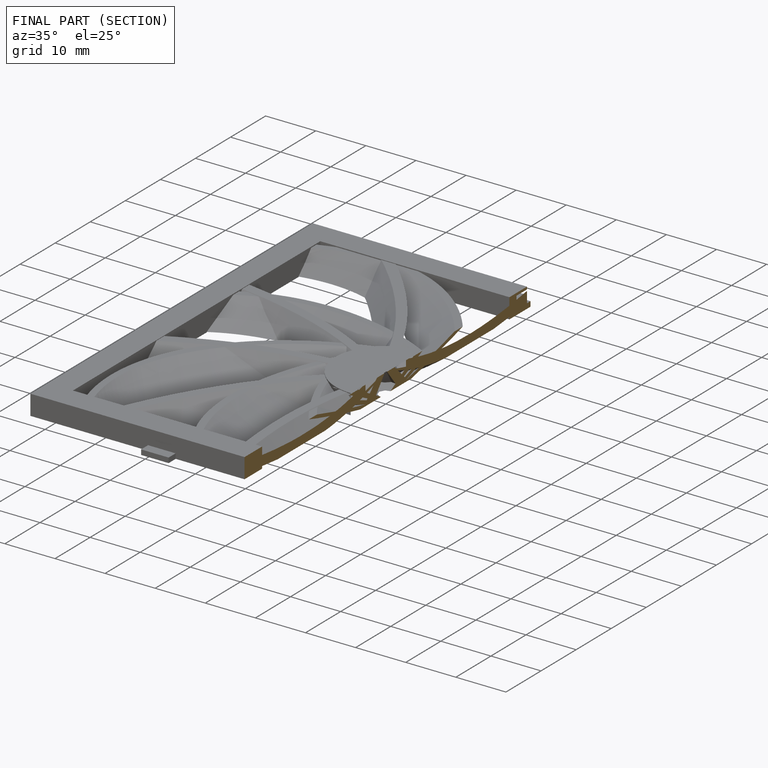
[diagram: finished part — half-section view (interior)]
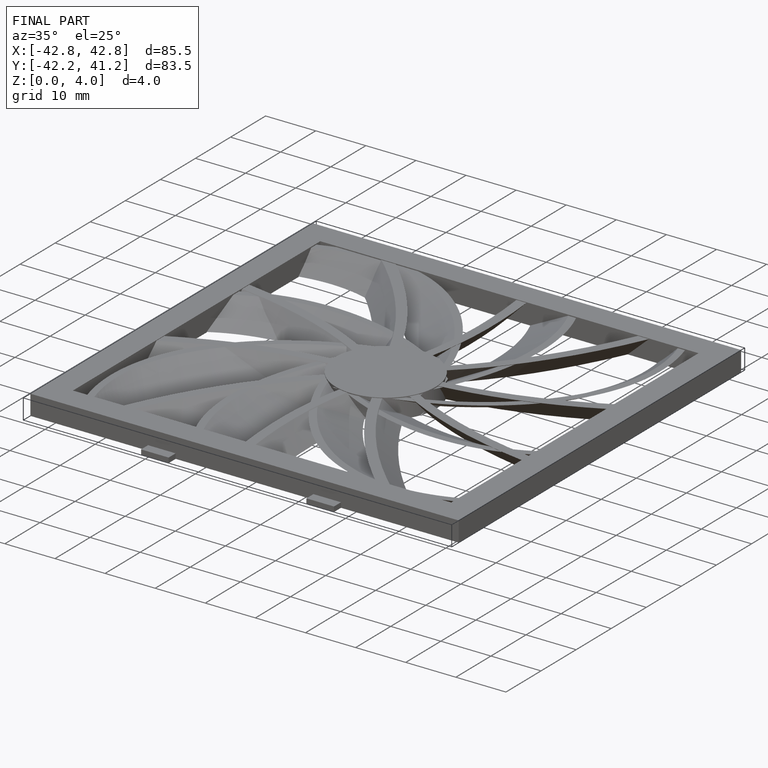
[diagram: finished part — iso view with bounding-box wireframe]
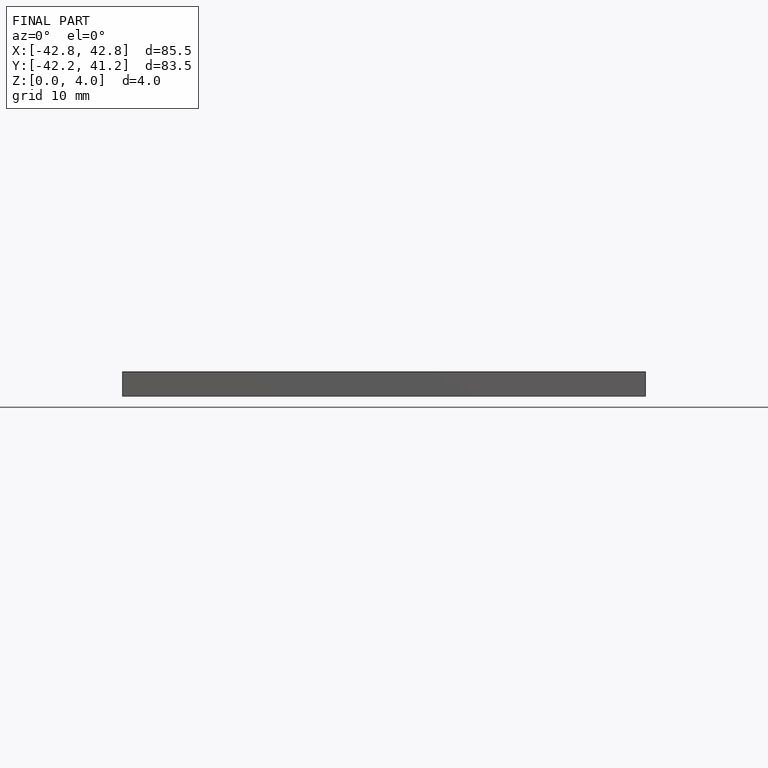
[diagram: finished part — front view with bounding-box wireframe]
